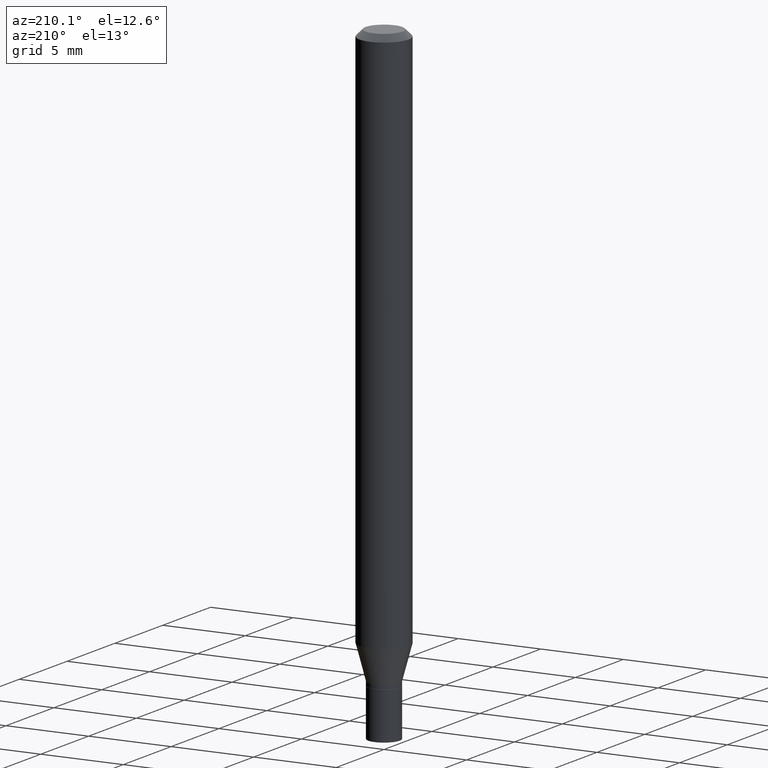
[diagram: clean part render]
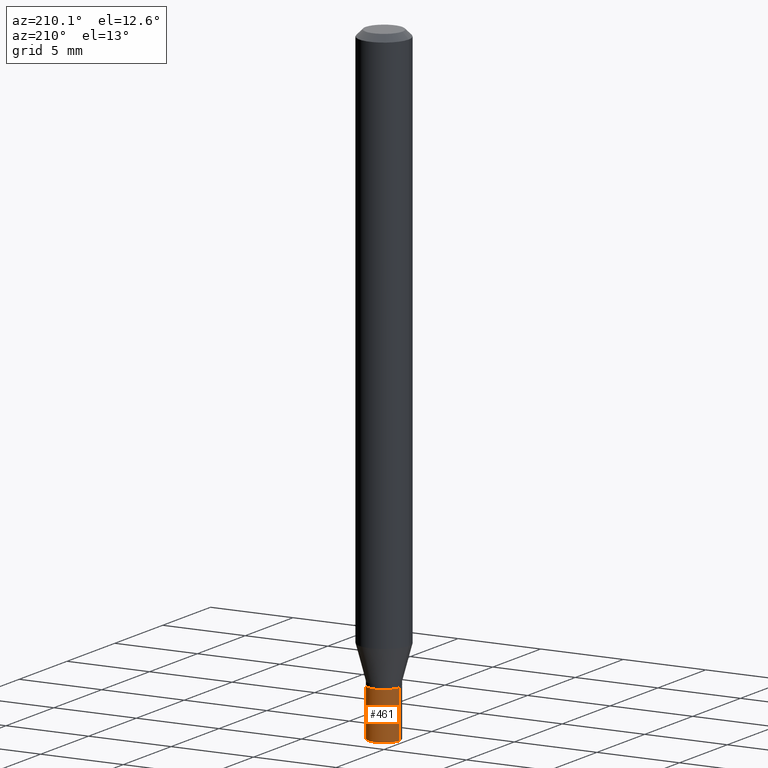
[diagram: same view with one face highlighted and labeled with its STEP entity id]
A machine part, auxiliary view. The second image highlights one B-rep face of the part: STEP entity #461.
In plain terms, the highlighted cylindrical surface (edge-blend (fillet) strip) has radius 0.95 mm, axis along (-0, 0, 1).
Its self-contained STEP definition (entity closure, byte-faithful):
#10 = VERTEX_POINT ( 'NONE', #406 ) ;
#11 = VECTOR ( 'NONE', #282, 39.37007874015748143 ) ;
#22 = ORIENTED_EDGE ( 'NONE', *, *, #238, .F. ) ;
#35 = CARTESIAN_POINT ( 'NONE',  ( 0.03740000000000000269, -5.498384812410185366E-15, -1.500000000000000222 ) ) ;
#36 = DIRECTION ( 'NONE',  ( -2.445468806185136597E-29, 3.491481338843145583E-15, 1.000000000000000000 ) ) ;
#43 = CARTESIAN_POINT ( 'NONE',  ( 0.03740000000000000269, -5.106640606191984188E-15, -1.387800000000000145 ) ) ;
#55 = AXIS2_PLACEMENT_3D ( 'NONE', #141, #401, #181 ) ;
#63 = CARTESIAN_POINT ( 'NONE',  ( 3.668203209277704895E-29, -5.237222008264718177E-15, -1.500000000000000222 ) ) ;
#100 = AXIS2_PLACEMENT_3D ( 'NONE', #320, #36, #206 ) ;
#136 = DIRECTION ( 'NONE',  ( -2.445468806185136877E-29, 3.491481338843145188E-15, 1.000000000000000000 ) ) ;
#141 = CARTESIAN_POINT ( 'NONE',  ( 0.000000000000000000, 0.000000000000000000, 0.000000000000000000 ) ) ;
#142 = VERTEX_POINT ( 'NONE', #43 ) ;
#181 = DIRECTION ( 'NONE',  ( 1.000000000000000000, -6.982962677686266711E-15, 4.876176775795935793E-29 ) ) ;
#185 = ORIENTED_EDGE ( 'NONE', *, *, #251, .T. ) ;
#204 = LINE ( 'NONE', #349, #11 ) ;
#206 = DIRECTION ( 'NONE',  ( 1.000000000000000000, -6.982962677686274599E-15, 0.000000000000000000 ) ) ;
#225 = CIRCLE ( 'NONE', #462, 0.03740000000000000269 ) ;
#228 = EDGE_LOOP ( 'NONE', ( #447, #185, #22, #325 ) ) ;
#238 = EDGE_CURVE ( 'NONE', #142, #355, #358, .T. ) ;
#251 = EDGE_CURVE ( 'NONE', #10, #355, #279, .T. ) ;
#276 = DIRECTION ( 'NONE',  ( -2.445468806185136597E-29, 3.491481338843145583E-15, 1.000000000000000000 ) ) ;
#279 = LINE ( 'NONE', #391, #328 ) ;
#282 = DIRECTION ( 'NONE',  ( -2.445468806185136877E-29, 3.491481338843145188E-15, 1.000000000000000000 ) ) ;
#294 = VERTEX_POINT ( 'NONE', #35 ) ;
#315 = EDGE_CURVE ( 'NONE', #294, #142, #204, .T. ) ;
#320 = CARTESIAN_POINT ( 'NONE',  ( 3.393821609223733045E-29, -4.845477802046517788E-15, -1.387800000000000145 ) ) ;
#325 = ORIENTED_EDGE ( 'NONE', *, *, #315, .F. ) ;
#328 = VECTOR ( 'NONE', #136, 39.37007874015748143 ) ;
#349 = CARTESIAN_POINT ( 'NONE',  ( 0.03740000000000000269, -2.611628041454664002E-16, 1.823690114147680082E-30 ) ) ;
#355 = VERTEX_POINT ( 'NONE', #424 ) ;
#358 = CIRCLE ( 'NONE', #100, 0.03740000000000000269 ) ;
#361 = CYLINDRICAL_SURFACE ( 'NONE', #55, 0.03740000000000000269 ) ;
#391 = CARTESIAN_POINT ( 'NONE',  ( -0.03740000000000000269, 2.657429831742774886E-16, -1.839681723755335040E-30 ) ) ;
#401 = DIRECTION ( 'NONE',  ( -2.445468806185136597E-29, 3.491481338843145583E-15, 1.000000000000000000 ) ) ;
#402 = EDGE_CURVE ( 'NONE', #294, #10, #225, .T. ) ;
#406 = CARTESIAN_POINT ( 'NONE',  ( -0.03740000000000000269, -4.775606921981340198E-15, -1.500000000000000222 ) ) ;
#424 = CARTESIAN_POINT ( 'NONE',  ( -0.03740000000000000269, -4.775606921981340198E-15, -1.387800000000000145 ) ) ;
#431 = DIRECTION ( 'NONE',  ( 1.000000000000000000, -6.982962677686274599E-15, 0.000000000000000000 ) ) ;
#447 = ORIENTED_EDGE ( 'NONE', *, *, #402, .T. ) ;
#459 = FACE_OUTER_BOUND ( 'NONE', #228, .T. ) ;
#461 = ADVANCED_FACE ( 'NONE', ( #459 ), #361, .T. ) ;
#462 = AXIS2_PLACEMENT_3D ( 'NONE', #63, #276, #431 ) ;